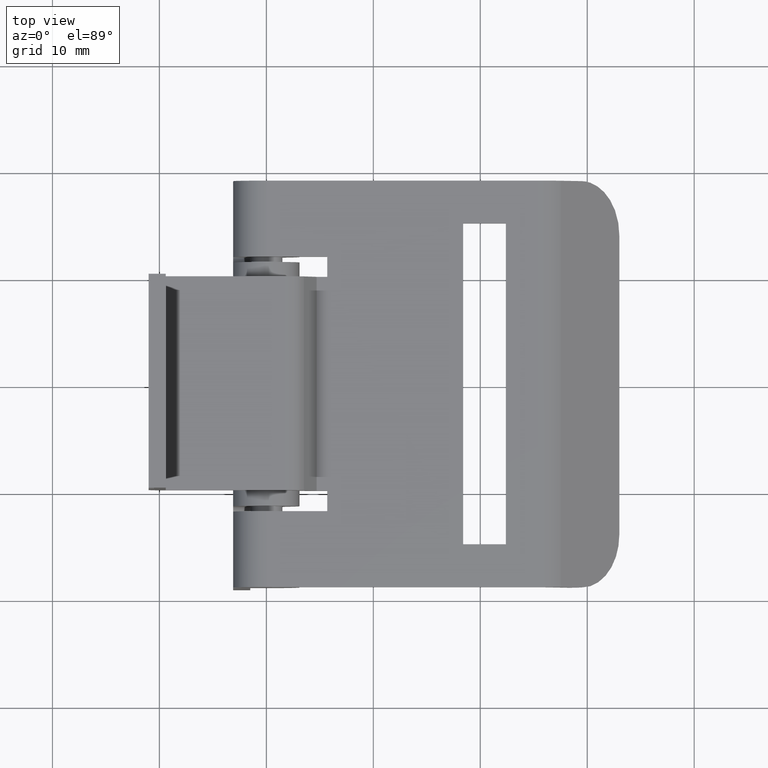
[diagram: clean part render]
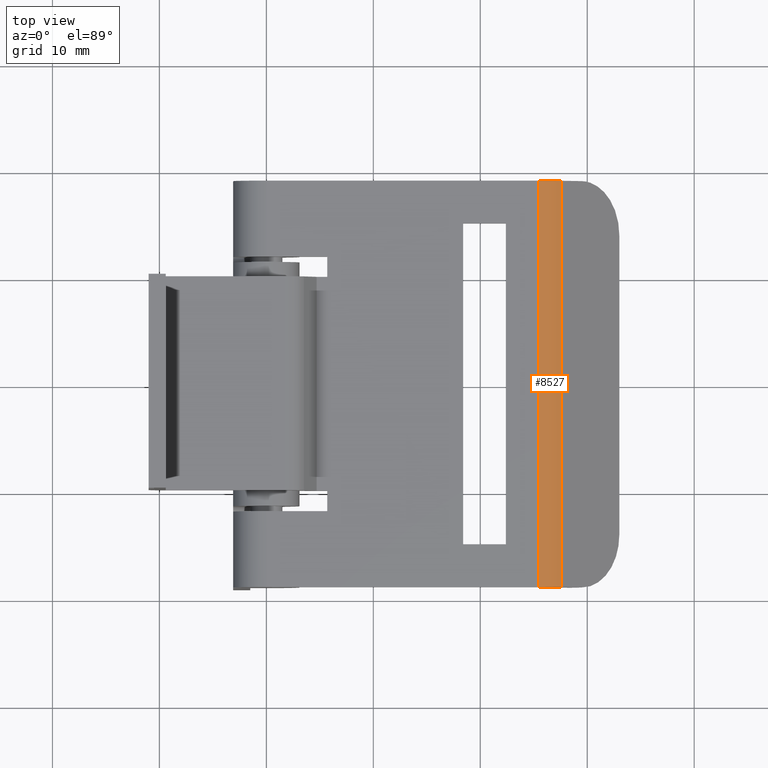
[diagram: same view with one face highlighted and labeled with its STEP entity id]
A machine part, top view. The second image highlights one B-rep face of the part: STEP entity #8527.
In plain terms, the highlighted face is a freeform B-spline surface patch.
Its self-contained STEP definition (entity closure, byte-faithful):
#8296=CARTESIAN_POINT('',(27.536658616296151,-19.0,2.226067383703845));
#8297=VERTEX_POINT('',#8296);
#8303=CARTESIAN_POINT('',(25.420105000000099,-19.0,3.099990999999790));
#8304=VERTEX_POINT('',#8303);
#8305=CARTESIAN_POINT('',(27.536658616296151,-19.0,2.226067383703846));
#8306=CARTESIAN_POINT('',(26.658803055509740,-18.999999999999993,3.099990999999791));
#8307=CARTESIAN_POINT('',(25.420105000000099,-19.0,3.099990999999790));
#8315=(BOUNDED_CURVE()B_SPLINE_CURVE(2,(#8305,#8306,#8307),.UNSPECIFIED.,.F.,.U.)CURVE()GEOMETRIC_REPRESENTATION_ITEM()QUASI_UNIFORM_CURVE()RATIONAL_B_SPLINE_CURVE((1.0,0.924308424688792,1.0))REPRESENTATION_ITEM(''));
#8316=EDGE_CURVE('',#8297,#8304,#8315,.T.);
#8387=CARTESIAN_POINT('',(27.536658616296151,19.0,2.226067383703845));
#8388=VERTEX_POINT('',#8387);
#8458=CARTESIAN_POINT('',(25.420105000000099,19.0,3.099990999999790));
#8459=VERTEX_POINT('',#8458);
#8465=CARTESIAN_POINT('',(27.536658616296151,19.0,2.226067383703846));
#8466=CARTESIAN_POINT('',(26.658803055509740,18.999999999999993,3.099990999999791));
#8467=CARTESIAN_POINT('',(25.420105000000099,19.0,3.099990999999790));
#8475=(BOUNDED_CURVE()B_SPLINE_CURVE(2,(#8465,#8466,#8467),.UNSPECIFIED.,.F.,.U.)CURVE()GEOMETRIC_REPRESENTATION_ITEM()QUASI_UNIFORM_CURVE()RATIONAL_B_SPLINE_CURVE((1.0,0.924308424688792,1.0))REPRESENTATION_ITEM(''));
#8476=EDGE_CURVE('',#8388,#8459,#8475,.T.);
#8493=CARTESIAN_POINT('',(27.536658616296151,19.0,2.226067383703845));
#8494=CARTESIAN_POINT('',(27.536658616296151,-19.0,2.226067383703845));
#8495=QUASI_UNIFORM_CURVE('',1,(#8493,#8494),.UNSPECIFIED.,.F.,.U.);
#8496=EDGE_CURVE('',#8388,#8297,#8495,.T.);
#8503=CARTESIAN_POINT('',(25.341574155076479,19.949999999999999,3.098962974926461));
#8504=CARTESIAN_POINT('',(25.341574155076479,-19.973750000000010,3.098962974926461));
#8505=CARTESIAN_POINT('',(26.694145239959475,19.950000000000006,3.134381295271958));
#8506=CARTESIAN_POINT('',(26.694145239959475,-19.973749999999999,3.134381295271958));
#8507=CARTESIAN_POINT('',(27.616016805832391,19.949999999999999,2.143999645041774));
#8508=CARTESIAN_POINT('',(27.616016805832391,-19.973750000000010,2.143999645041774));
#8516=(BOUNDED_SURFACE()B_SPLINE_SURFACE(1,2,((#8503,#8505,#8507),(#8504,#8506,#8508)),.UNSPECIFIED.,.F.,.F.,.U.)B_SPLINE_SURFACE_WITH_KNOTS((2,2),(3,3),(0.0,39.923750000000013),(0.0,2.580894166775049),.UNSPECIFIED.)GEOMETRIC_REPRESENTATION_ITEM()RATIONAL_B_SPLINE_SURFACE(((1.0,0.910809679107140,0.998319172136885),(1.0,0.910809679107140,0.998319172136885)))REPRESENTATION_ITEM('')SURFACE());
#8517=ORIENTED_EDGE('',*,*,#8316,.F.);
#8518=ORIENTED_EDGE('',*,*,#8496,.F.);
#8519=ORIENTED_EDGE('',*,*,#8476,.T.);
#8520=CARTESIAN_POINT('',(25.420105000000099,19.0,3.099990999999790));
#8521=CARTESIAN_POINT('',(25.420105000000099,-19.0,3.099990999999790));
#8522=QUASI_UNIFORM_CURVE('',1,(#8520,#8521),.UNSPECIFIED.,.F.,.U.);
#8523=EDGE_CURVE('',#8459,#8304,#8522,.T.);
#8524=ORIENTED_EDGE('',*,*,#8523,.T.);
#8525=EDGE_LOOP('',(#8517,#8518,#8519,#8524));
#8526=FACE_OUTER_BOUND('',#8525,.T.);
#8527=ADVANCED_FACE('',(#8526),#8516,.T.);